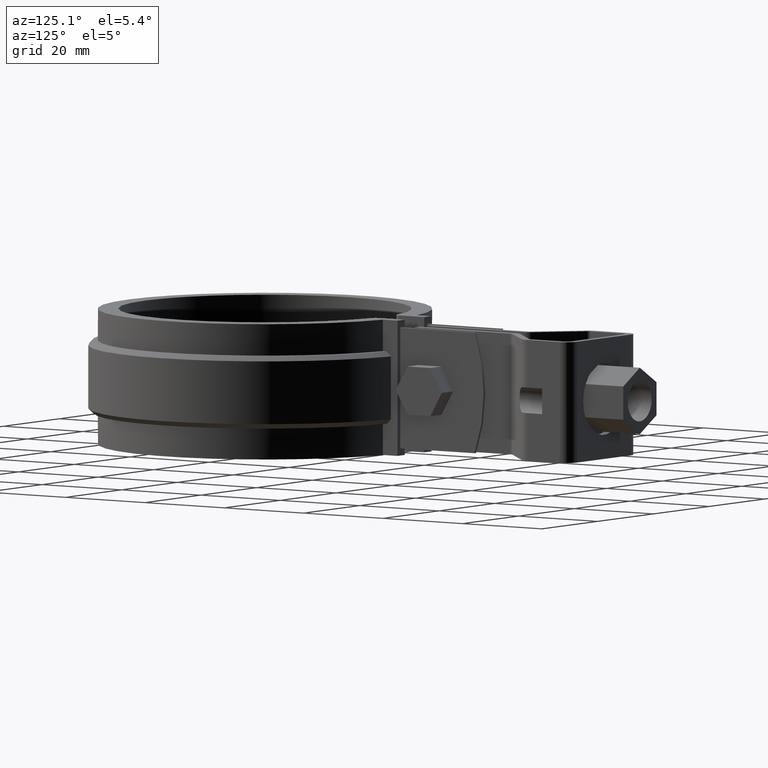
[diagram: clean part render]
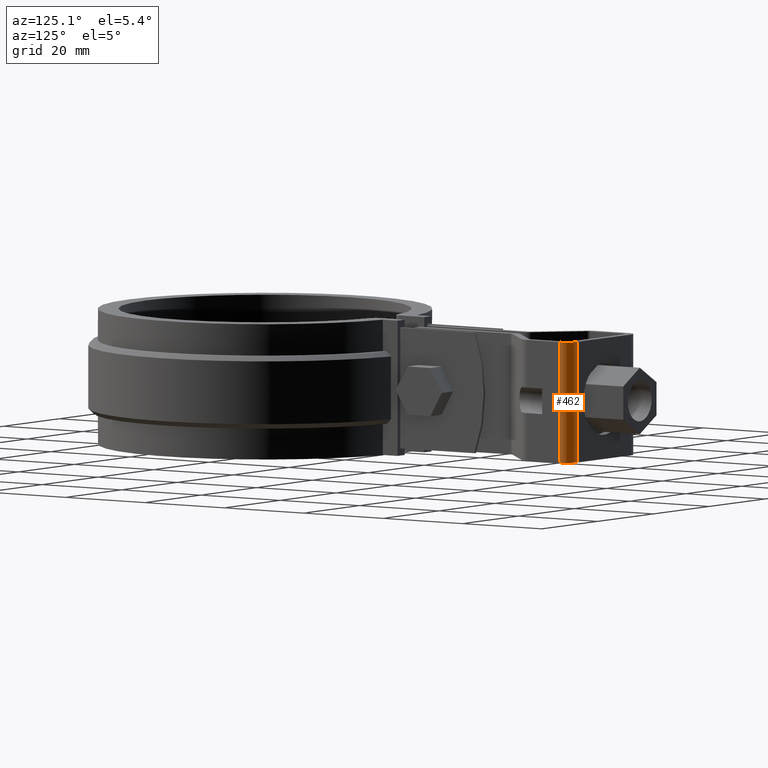
[diagram: same view with one face highlighted and labeled with its STEP entity id]
A machine part, auxiliary view. The second image highlights one B-rep face of the part: STEP entity #462.
In plain terms, the highlighted cylindrical surface (edge-blend (fillet) strip) has radius 2.6 mm, axis along (0, 0, 1).
Its self-contained STEP definition (entity closure, byte-faithful):
#462 = ADVANCED_FACE( '', ( #848 ), #849, .T. );
#848 = FACE_OUTER_BOUND( '', #1851, .T. );
#849 = CYLINDRICAL_SURFACE( '', #1852, 2.60000000000000 );
#1851 = EDGE_LOOP( '', ( #4173, #4174, #4175, #4176 ) );
#1852 = AXIS2_PLACEMENT_3D( '', #4177, #4178, #4179 );
#4173 = ORIENTED_EDGE( '', *, *, #5197, .T. );
#4174 = ORIENTED_EDGE( '', *, *, #5198, .F. );
#4175 = ORIENTED_EDGE( '', *, *, #5145, .F. );
#4176 = ORIENTED_EDGE( '', *, *, #5185, .T. );
#4177 = CARTESIAN_POINT( '', ( 9.64999999995578, 82.8015111822747, -8.79542272347322E-009 ) );
#4178 = DIRECTION( '', ( 3.93786081994497E-013, 6.36784791563427E-011, 1.00000000000000 ) );
#4179 = DIRECTION( '', ( -8.94763121102738E-014, 1.00000000000000, -6.36784791563427E-011 ) );
#5145 = EDGE_CURVE( '', #6005, #6007, #6008, .T. );
#5185 = EDGE_CURVE( '', #6005, #6075, #6077, .T. );
#5197 = EDGE_CURVE( '', #6075, #6094, #6095, .T. );
#5198 = EDGE_CURVE( '', #6007, #6094, #6096, .T. );
#6005 = VERTEX_POINT( '', #9109 );
#6007 = VERTEX_POINT( '', #9112 );
#6008 = CIRCLE( '', #9113, 2.59999999999999 );
#6075 = VERTEX_POINT( '', #9227 );
#6077 = LINE( '', #9230, #9231 );
#6094 = VERTEX_POINT( '', #9257 );
#6095 = CIRCLE( '', #9258, 2.59999999999999 );
#6096 = LINE( '', #9259, #9260 );
#9109 = CARTESIAN_POINT( '', ( 12.2499999999558, 82.8015111822749, -8.79643580198319E-009 ) );
#9112 = CARTESIAN_POINT( '', ( 9.64999999995554, 85.4015111822747, -8.96098473202045E-009 ) );
#9113 = AXIS2_PLACEMENT_3D( '', #10190, #10191, #10192 );
#9227 = CARTESIAN_POINT( '', ( 12.2499999999459, 82.8015111806830, -25.0000000087964 ) );
#9230 = CARTESIAN_POINT( '', ( 12.2499999999558, 82.8015111822749, -8.79643580198319E-009 ) );
#9231 = VECTOR( '', #10254, 1000.00000000000 );
#9257 = CARTESIAN_POINT( '', ( 9.64999999994570, 85.4015111806827, -25.0000000089610 ) );
#9258 = AXIS2_PLACEMENT_3D( '', #10270, #10271, #10272 );
#9259 = CARTESIAN_POINT( '', ( 9.64999999995554, 85.4015111822747, -8.96098473202045E-009 ) );
#9260 = VECTOR( '', #10273, 1000.00000000000 );
#10190 = CARTESIAN_POINT( '', ( 9.64999999995578, 82.8015111822747, -8.79542272347322E-009 ) );
#10191 = DIRECTION( '', ( 3.93786081994497E-013, 6.36784791563427E-011, 1.00000000000000 ) );
#10192 = DIRECTION( '', ( 1.00000000000000, 8.94763120851982E-014, -3.93786082000195E-013 ) );
#10254 = DIRECTION( '', ( -3.93786081994497E-013, -6.36784791563427E-011, -1.00000000000000 ) );
#10270 = CARTESIAN_POINT( '', ( 9.64999999994593, 82.8015111806827, -25.0000000087954 ) );
#10271 = DIRECTION( '', ( 3.93786081994497E-013, 6.36784791563427E-011, 1.00000000000000 ) );
#10272 = DIRECTION( '', ( 1.00000000000000, 8.94763120851982E-014, -3.93786082000195E-013 ) );
#10273 = DIRECTION( '', ( -3.93786081994497E-013, -6.36784791563427E-011, -1.00000000000000 ) );